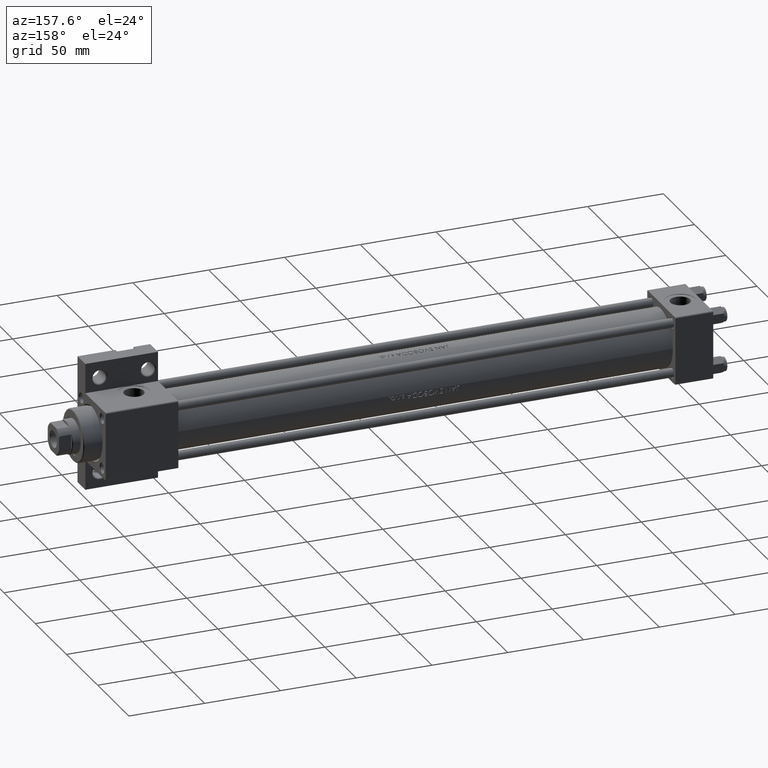
[diagram: clean part render]
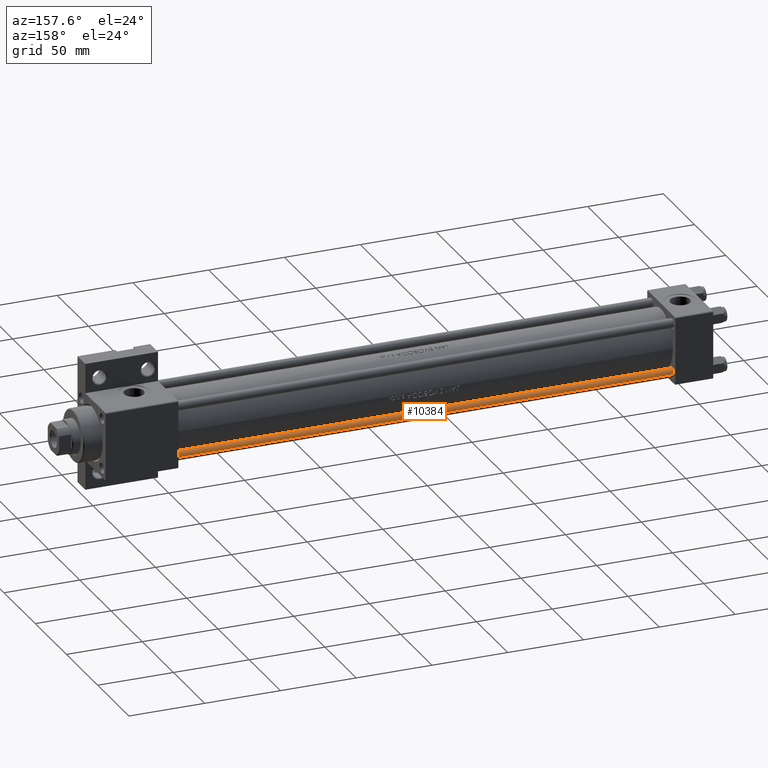
[diagram: same view with one face highlighted and labeled with its STEP entity id]
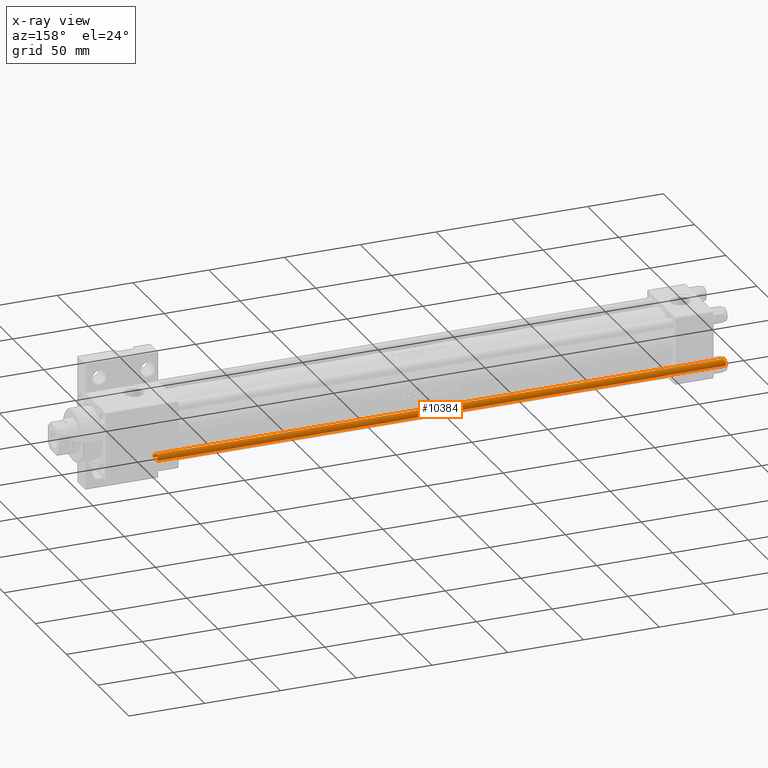
[diagram: x-ray of the same camera — body ghosted, the highlighted face saturated]
A machine part, auxiliary view. The second image highlights one B-rep face of the part: STEP entity #10384.
The next image is the same camera in x-ray: the body ghosted, the highlighted face saturated — about 0% of this face is hidden behind the body in this view.
In plain terms, the highlighted cylindrical surface (edge-blend (fillet) strip) has radius 3 mm, axis along (-1, -0, 0).
Its self-contained STEP definition (entity closure, byte-faithful):
#1799 = DIRECTION ( 'NONE',  ( 1.000000000000000000, 0.000000000000000000, 0.000000000000000000 ) ) ;
#2118 = VERTEX_POINT ( 'NONE', #33482 ) ;
#3075 = VECTOR ( 'NONE', #33621, 1000.000000000000000 ) ;
#3811 = VERTEX_POINT ( 'NONE', #39175 ) ;
#4476 = CARTESIAN_POINT ( 'NONE',  ( 3.000000000000000444, 3.673940397442060361E-16, 375.5000000000000568 ) ) ;
#4575 = CARTESIAN_POINT ( 'NONE',  ( 3.000000000000000444, 3.673940397442060361E-16, 0.4999999999999449329 ) ) ;
#4989 = EDGE_LOOP ( 'NONE', ( #6163, #41163, #35129, #22973 ) ) ;
#6163 = ORIENTED_EDGE ( 'NONE', *, *, #42969, .T. ) ;
#8103 = CIRCLE ( 'NONE', #12714, 3.000000000000000444 ) ;
#9538 = CARTESIAN_POINT ( 'NONE',  ( 0.000000000000000000, 0.000000000000000000, 376.0000000000000000 ) ) ;
#10384 = ADVANCED_FACE ( 'NONE', ( #31276 ), #46205, .T. ) ;
#11004 = LINE ( 'NONE', #47206, #36573 ) ;
#12714 = AXIS2_PLACEMENT_3D ( 'NONE', #13809, #35799, #42536 ) ;
#13809 = CARTESIAN_POINT ( 'NONE',  ( 0.000000000000000000, 0.000000000000000000, 375.5000000000000568 ) ) ;
#14142 = DIRECTION ( 'NONE',  ( -0.000000000000000000, -0.000000000000000000, -1.000000000000000000 ) ) ;
#18872 = CARTESIAN_POINT ( 'NONE',  ( 3.000000000000000444, 3.673940397442060361E-16, 376.0000000000000000 ) ) ;
#20156 = DIRECTION ( 'NONE',  ( -1.000000000000000000, 0.000000000000000000, 0.000000000000000000 ) ) ;
#22973 = ORIENTED_EDGE ( 'NONE', *, *, #41001, .F. ) ;
#25384 = EDGE_CURVE ( 'NONE', #30462, #34688, #37232, .T. ) ;
#27853 = AXIS2_PLACEMENT_3D ( 'NONE', #9538, #45729, #20156 ) ;
#28774 = EDGE_CURVE ( 'NONE', #34688, #3811, #46341, .T. ) ;
#30462 = VERTEX_POINT ( 'NONE', #4476 ) ;
#31276 = FACE_OUTER_BOUND ( 'NONE', #4989, .T. ) ;
#33482 = CARTESIAN_POINT ( 'NONE',  ( -3.000000000000000444, 0.000000000000000000, 375.5000000000000568 ) ) ;
#33621 = DIRECTION ( 'NONE',  ( -0.000000000000000000, -0.000000000000000000, -1.000000000000000000 ) ) ;
#34648 = CARTESIAN_POINT ( 'NONE',  ( 0.000000000000000000, 0.000000000000000000, 0.4999999999999449329 ) ) ;
#34688 = VERTEX_POINT ( 'NONE', #4575 ) ;
#35129 = ORIENTED_EDGE ( 'NONE', *, *, #28774, .T. ) ;
#35799 = DIRECTION ( 'NONE',  ( 0.000000000000000000, 0.000000000000000000, -1.000000000000000000 ) ) ;
#36573 = VECTOR ( 'NONE', #14142, 1000.000000000000000 ) ;
#37232 = LINE ( 'NONE', #18872, #3075 ) ;
#39175 = CARTESIAN_POINT ( 'NONE',  ( -3.000000000000000444, 0.000000000000000000, 0.4999999999999449329 ) ) ;
#41001 = EDGE_CURVE ( 'NONE', #2118, #3811, #11004, .T. ) ;
#41163 = ORIENTED_EDGE ( 'NONE', *, *, #25384, .T. ) ;
#42536 = DIRECTION ( 'NONE',  ( 1.000000000000000000, 0.000000000000000000, 0.000000000000000000 ) ) ;
#42969 = EDGE_CURVE ( 'NONE', #2118, #30462, #8103, .T. ) ;
#45717 = DIRECTION ( 'NONE',  ( -0.000000000000000000, -0.000000000000000000, 1.000000000000000000 ) ) ;
#45729 = DIRECTION ( 'NONE',  ( -0.000000000000000000, -0.000000000000000000, -1.000000000000000000 ) ) ;
#46205 = CYLINDRICAL_SURFACE ( 'NONE', #27853, 3.000000000000000444 ) ;
#46341 = CIRCLE ( 'NONE', #47107, 3.000000000000000444 ) ;
#47107 = AXIS2_PLACEMENT_3D ( 'NONE', #34648, #45717, #1799 ) ;
#47206 = CARTESIAN_POINT ( 'NONE',  ( -3.000000000000000444, 0.000000000000000000, 376.0000000000000000 ) ) ;